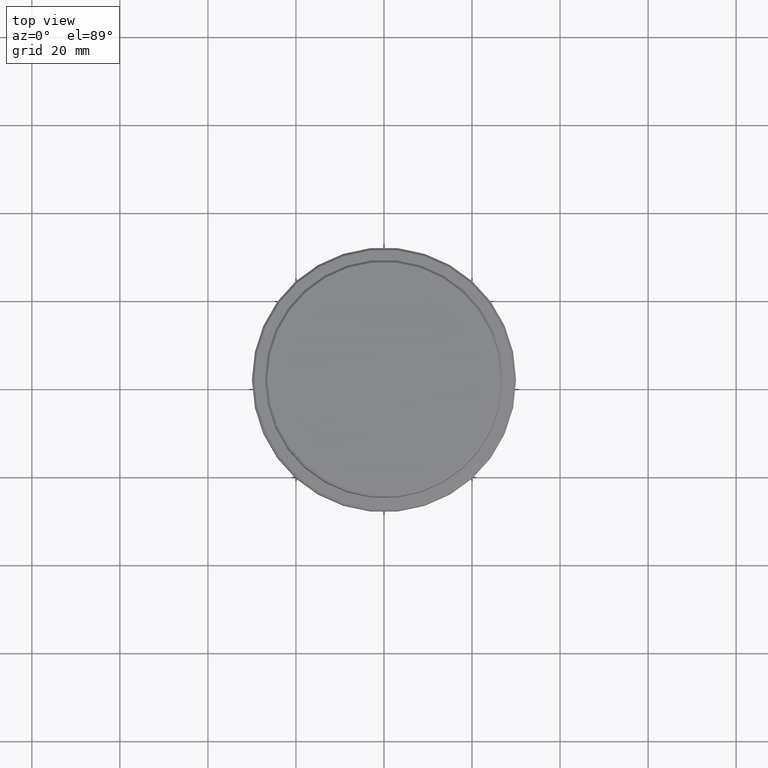
[diagram: clean part render]
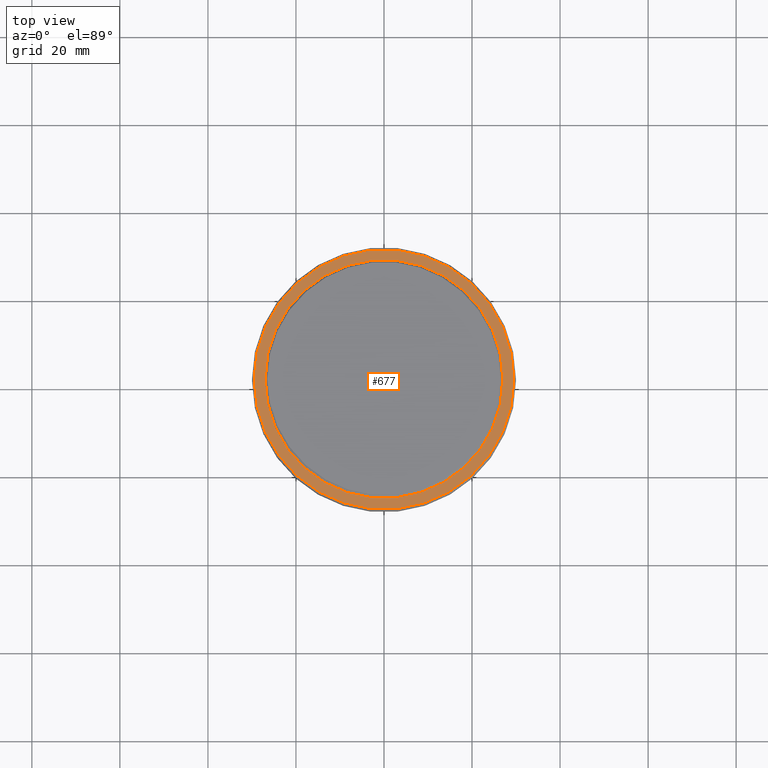
[diagram: same view with one face highlighted and labeled with its STEP entity id]
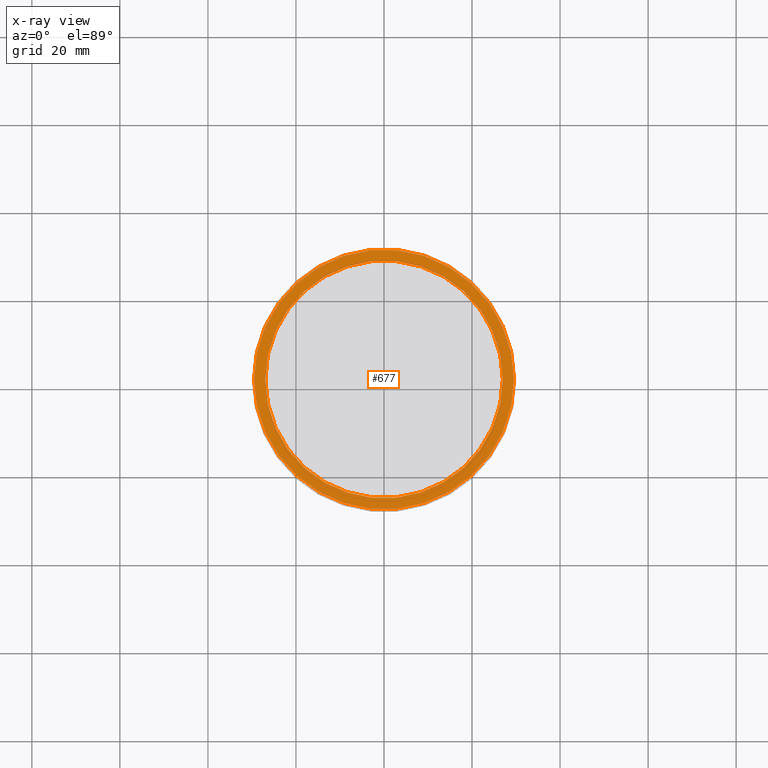
[diagram: x-ray of the same camera — body ghosted, the highlighted face saturated]
A machine part, top view. The second image highlights one B-rep face of the part: STEP entity #677.
The next image is the same camera in x-ray: the body ghosted, the highlighted face saturated — about 0% of this face is hidden behind the body in this view.
In plain terms, the highlighted planar face has unit normal (0, -0, 1).
Its self-contained STEP definition (entity closure, byte-faithful):
#8 = FACE_OUTER_BOUND ( 'NONE', #551, .T. ) ;
#10 = CIRCLE ( 'NONE', #1083, 29.50000000000000000 ) ;
#21 = CARTESIAN_POINT ( 'NONE',  ( 0.000000000000000000, 26.49999999999999645, -12.00000000000000178 ) ) ;
#42 = CARTESIAN_POINT ( 'NONE',  ( 0.000000000000000000, 0.000000000000000000, -12.00000000000000178 ) ) ;
#61 = CIRCLE ( 'NONE', #941, 26.99999999999999289 ) ;
#69 = DIRECTION ( 'NONE',  ( 1.000000000000000000, 0.000000000000000000, 0.000000000000000000 ) ) ;
#117 = VERTEX_POINT ( 'NONE', #1108 ) ;
#134 = VERTEX_POINT ( 'NONE', #723 ) ;
#142 = DIRECTION ( 'NONE',  ( 1.000000000000000000, 0.000000000000000000, 0.000000000000000000 ) ) ;
#245 = CIRCLE ( 'NONE', #645, 29.50000000000000000 ) ;
#285 = VERTEX_POINT ( 'NONE', #531 ) ;
#291 = AXIS2_PLACEMENT_3D ( 'NONE', #21, #788, #1227 ) ;
#351 = PLANE ( 'NONE',  #291 ) ;
#451 = VERTEX_POINT ( 'NONE', #1300 ) ;
#454 = ORIENTED_EDGE ( 'NONE', *, *, #534, .T. ) ;
#488 = DIRECTION ( 'NONE',  ( -0.000000000000000000, -0.000000000000000000, 1.000000000000000000 ) ) ;
#498 = EDGE_LOOP ( 'NONE', ( #975, #454 ) ) ;
#507 = ORIENTED_EDGE ( 'NONE', *, *, #1322, .T. ) ;
#513 = CARTESIAN_POINT ( 'NONE',  ( 0.000000000000000000, 0.000000000000000000, -12.00000000000000178 ) ) ;
#518 = EDGE_CURVE ( 'NONE', #451, #134, #1141, .T. ) ;
#531 = CARTESIAN_POINT ( 'NONE',  ( -29.50000000000000000, 0.000000000000000000, -12.00000000000000178 ) ) ;
#534 = EDGE_CURVE ( 'NONE', #134, #451, #61, .T. ) ;
#551 = EDGE_LOOP ( 'NONE', ( #507, #729 ) ) ;
#639 = EDGE_CURVE ( 'NONE', #117, #285, #10, .T. ) ;
#645 = AXIS2_PLACEMENT_3D ( 'NONE', #973, #1160, #728 ) ;
#677 = ADVANCED_FACE ( 'NONE', ( #8, #1019 ), #351, .T. ) ;
#723 = CARTESIAN_POINT ( 'NONE',  ( -26.99999999999999289, 3.306546357697852944E-15, -12.00000000000000178 ) ) ;
#728 = DIRECTION ( 'NONE',  ( 1.000000000000000000, 0.000000000000000000, 0.000000000000000000 ) ) ;
#729 = ORIENTED_EDGE ( 'NONE', *, *, #639, .T. ) ;
#788 = DIRECTION ( 'NONE',  ( 0.000000000000000000, -0.000000000000000000, 1.000000000000000000 ) ) ;
#797 = CARTESIAN_POINT ( 'NONE',  ( 0.000000000000000000, 0.000000000000000000, -12.00000000000000178 ) ) ;
#822 = DIRECTION ( 'NONE',  ( 0.000000000000000000, 0.000000000000000000, -1.000000000000000000 ) ) ;
#935 = DIRECTION ( 'NONE',  ( 1.000000000000000000, 0.000000000000000000, 0.000000000000000000 ) ) ;
#941 = AXIS2_PLACEMENT_3D ( 'NONE', #513, #1153, #935 ) ;
#973 = CARTESIAN_POINT ( 'NONE',  ( 0.000000000000000000, 0.000000000000000000, -12.00000000000000178 ) ) ;
#975 = ORIENTED_EDGE ( 'NONE', *, *, #518, .T. ) ;
#1019 = FACE_BOUND ( 'NONE', #498, .T. ) ;
#1083 = AXIS2_PLACEMENT_3D ( 'NONE', #797, #488, #142 ) ;
#1108 = CARTESIAN_POINT ( 'NONE',  ( 29.50000000000000000, 3.643324227463375391E-15, -12.00000000000000178 ) ) ;
#1141 = CIRCLE ( 'NONE', #1402, 26.99999999999999289 ) ;
#1153 = DIRECTION ( 'NONE',  ( 0.000000000000000000, 0.000000000000000000, -1.000000000000000000 ) ) ;
#1160 = DIRECTION ( 'NONE',  ( -0.000000000000000000, -0.000000000000000000, 1.000000000000000000 ) ) ;
#1227 = DIRECTION ( 'NONE',  ( 1.000000000000000000, 0.000000000000000000, 0.000000000000000000 ) ) ;
#1300 = CARTESIAN_POINT ( 'NONE',  ( 26.99999999999999289, 0.000000000000000000, -12.00000000000000178 ) ) ;
#1322 = EDGE_CURVE ( 'NONE', #285, #117, #245, .T. ) ;
#1402 = AXIS2_PLACEMENT_3D ( 'NONE', #42, #822, #69 ) ;